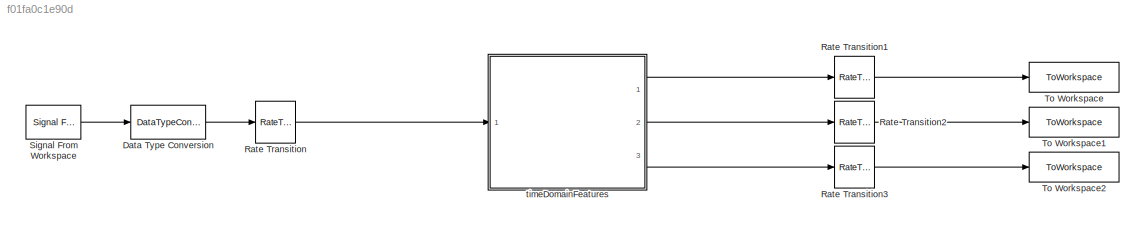
MODEL slx_f01fa0c1e90d
KIND model
CONFIG AbsTol = auto
CONFIG EnableMultiTasking = off
CONFIG FixedStep = auto
CONFIG InitFcn = simulinkInitTimeDomainFeatures
CONFIG MaxStep = auto
CONFIG MinStep = auto
CONFIG PostLoadFcn = addpath([fileparts(which(bdroot)) filesep '..' filesep])\nloadDataSimulinkCallback
CONFIG RelTol = 1e-3
CONFIG SampleTimeConstraint = Unconstrained
CONFIG SolverName = FixedStepDiscrete
CONFIG StartTime = 0.0
CONFIG StopFcn = simulinkVerifyTimeDomainFeatures
CONFIG StopTime = stopTime
BLOCK [DataTypeConversion] Data Type Conversion
  OutDataTypeStr = single
  RndMeth = Floor
  SaturateOnIntegerOverflow = off
BLOCK [RateTransition] Rate Transition
  OutPortSampleTime = params.systemClockPeriod
BLOCK [RateTransition] Rate Transition1
  OutPortSampleTime = params.samplingPeriod
BLOCK [RateTransition] Rate Transition2
  OutPortSampleTime = params.samplingPeriod
BLOCK [RateTransition] Rate Transition3
  OutPortSampleTime = params.samplingPeriod
BLOCK [Reference] Signal From Workspace  REF=dspsrcs4/Signal From
Workspace
  Ports = [0, 1]
  SourceBlock = dspsrcs4/Signal From\nWorkspace
  SourceProductBaseCode = DS
  SourceType = Signal From Workspace
BLOCK [ToWorkspace] To Workspace
  FixptAsFi = on
  MaxDataPoints = inf
  Ports = [1]
  SampleTime = -1
  Save2DSignal = 2-D array (concatenate along first dimension)
  VariableName = meanOut
BLOCK [ToWorkspace] To Workspace1
  FixptAsFi = on
  MaxDataPoints = inf
  Ports = [1]
  SampleTime = -1
  Save2DSignal = 2-D array (concatenate along first dimension)
  VariableName = stdOut
BLOCK [ToWorkspace] To Workspace2
  FixptAsFi = on
  MaxDataPoints = inf
  Ports = [1]
  SampleTime = -1
  Save2DSignal = 2-D array (concatenate along first dimension)
  VariableName = maxDiffOut
BLOCK [SubSystem] timeDomainFeatures
  Ports = [1, 3]
  ReferencedSubsystem = timeDomainFeatures
  RequestExecContextInheritance = off
LINE Data Type Conversion:1 -> Rate Transition:1
LINE Rate Transition1:1 -> To Workspace:1
LINE Rate Transition2:1 -> To Workspace1:1
LINE Rate Transition3:1 -> To Workspace2:1
LINE Rate Transition:1 -> timeDomainFeatures:1
LINE Signal From Workspace:1 -> Data Type Conversion:1
LINE timeDomainFeatures:1 -> Rate Transition1:1
LINE timeDomainFeatures:2 -> Rate Transition2:1
LINE timeDomainFeatures:3 -> Rate Transition3:1
